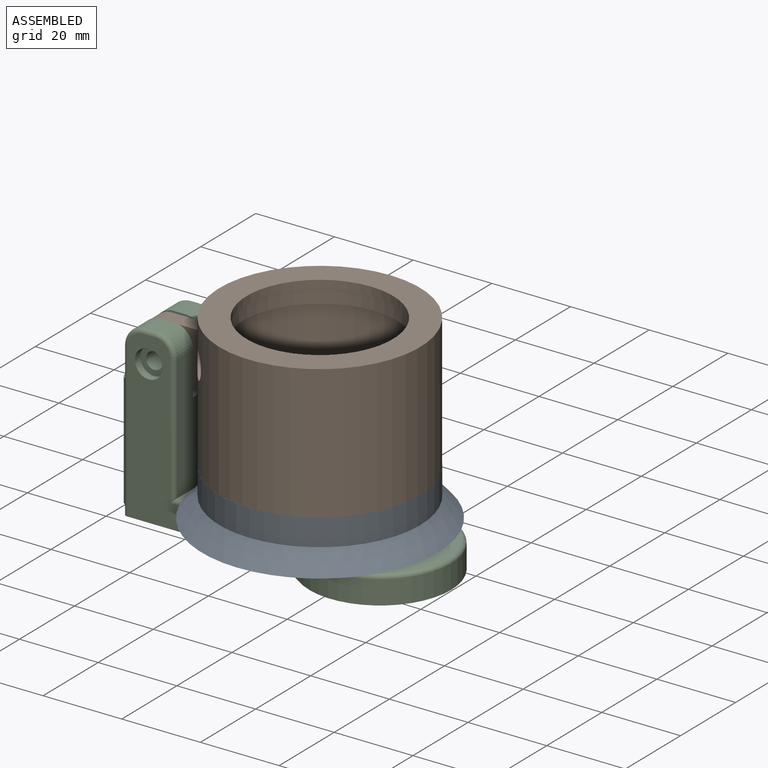
[diagram: assembled view]
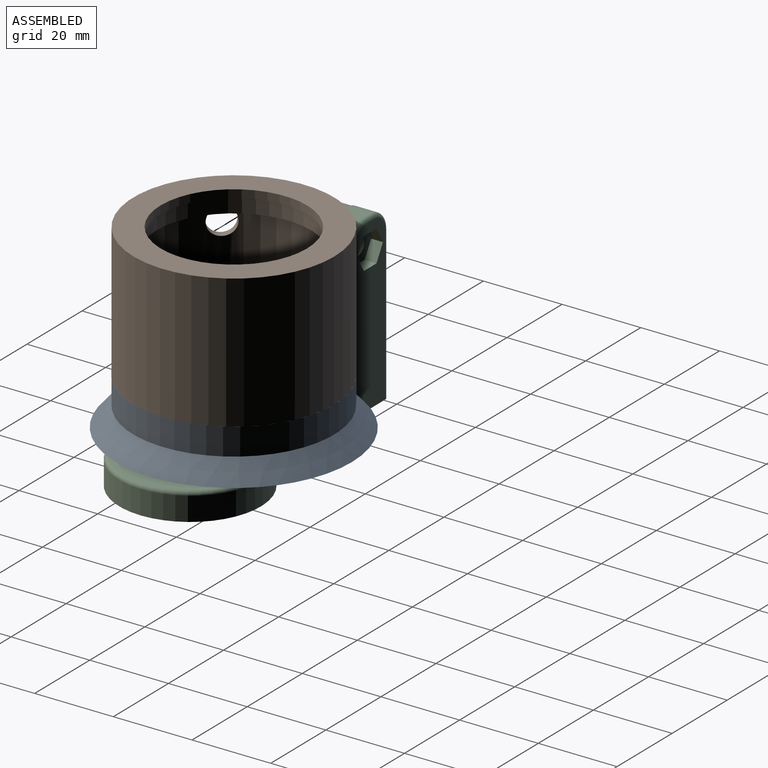
[diagram: assembled view, second angle]
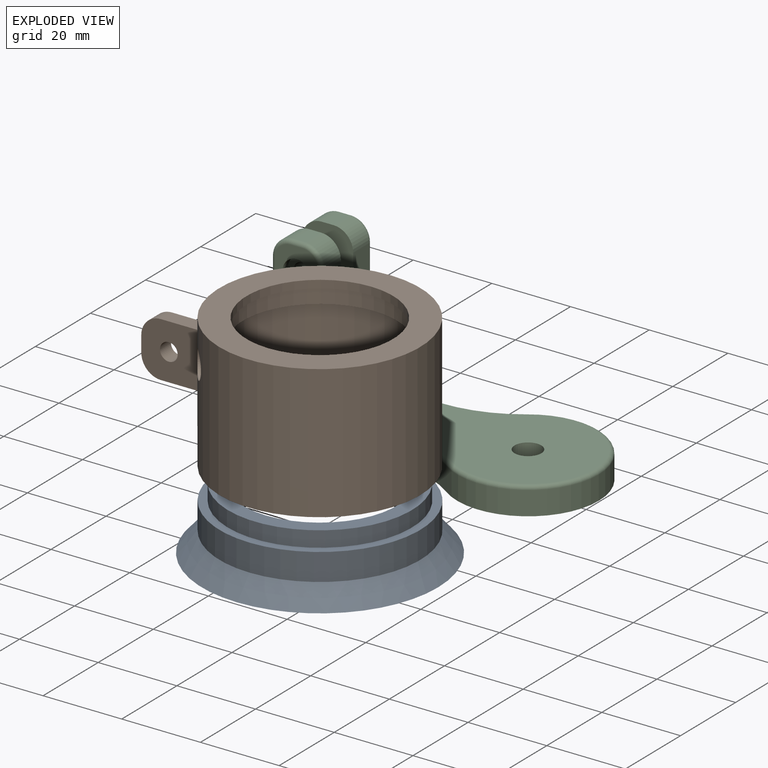
[diagram: exploded view]
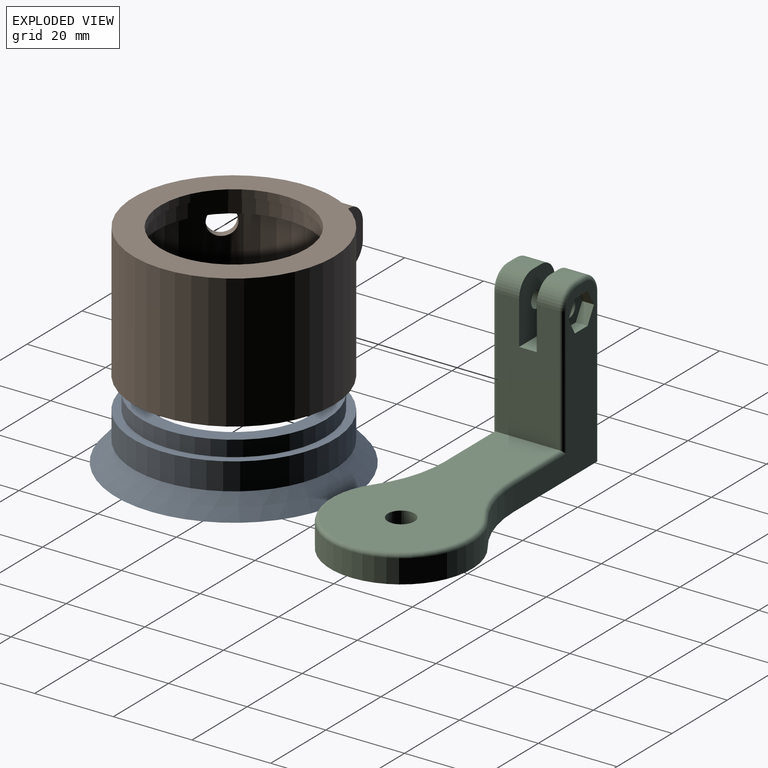
[diagram: exploded view, second angle]
ASSEMBLY  parts=3 mates=2
PART A: 10 faces, bbox 60x60x16 mm
  f0: cone r=19.45mm half-angle=41.3deg, axis (0,0,1), area 1188.3mm2, adj f1,f3
  f1: plane 60x60mm, normal (0,0,1), area 479.7mm2, adj f0,f2
  f2: cone r=17.95mm half-angle=41.3deg, axis (0,0,1), area 1909.6mm2, adj f1,f9
  f3: cylinder r=25.5mm len=51mm, axis (0,0,-1), area 1102.6mm2, adj f0,f4
  f4: plane 51x51mm, normal (0,0,-1), area 322.6mm2, adj f3,f6
  f5: cylinder r=19.6mm len=39.2mm, axis (0,0,1), area 492.6mm2, adj f7,f8
  f6: cylinder r=23.4mm len=46.8mm, axis (0,0,1), area 588.1mm2, adj f4,f7
  f7: plane 46.8x46.8mm, normal (0,0,-1), area 513.3mm2, adj f5,f6
  f8: plane 39.2x39.2mm, normal (0,0,-1), area 120mm2, adj f5,f9
  f9: cylinder r=18.6mm len=37.2mm, axis (0,0,-1), area 241mm2, adj f2,f8
PART B: 19 faces, bbox 51x69.5x34 mm
  f0: cylinder r=25.5mm len=51mm, axis (0,0,-1), area 5284.1mm2, adj f2,f3,f8,f10,f14,f17,f18
  f1: cylinder r=23.5mm len=47mm, axis (0,0,-1), area 4096.8mm2, adj f3,f4,f14
  f2: plane 51x51mm, normal (0,0,-1), area 956mm2, adj f0,f7
  f3: plane 51x51mm, normal (0,0,1), area 307.9mm2, adj f0,f1
  f4: plane 47x47mm, normal (0,0,1), area 528.1mm2, adj f1,f5
  f5: cylinder r=19.6mm len=39.2mm, axis (0,0,1), area 492.6mm2, adj f4,f6
  f6: plane 39.2x39.2mm, normal (0,0,1), area 120mm2, adj f5,f7
  f7: cylinder r=18.6mm len=37.2mm, axis (0,0,1), area 233.7mm2, adj f2,f6
  f8: plane 13.9x8.95mm, normal (0,0,-1), area 56.8mm2, adj f0,f9,f11,f16,f17,f18
  f9: plane 15.94x14mm, normal (1,0,0), area 196.6mm2, adj f8,f10,f12,f13,f15,f16,f18
  f10: plane 13.9x8.95mm, normal (0,0,1), area 56.8mm2, adj f0,f9,f11,f15,f17,f18
  f11: plane 15.94x14mm, normal (-1,0,0), area 196.6mm2, adj f8,f10,f12,f13,f15,f16,f17
  f12: plane 4x4mm, normal (0,-1,0), area 16mm2, adj f9,f11,f15,f16
  f13: cylinder r=2.25mm len=4.5mm, axis (1,0,0), area 56.5mm2, adj f9,f11
  f14: cylinder r=3.45mm len=6.9mm, axis (-0.66,-0.75,0), area 43.6mm2, adj f0,f1
  f15: cylinder r=5mm len=5mm, axis (-1,0,0), area 31.4mm2, adj f9,f10,f11,f12
  f16: cylinder r=5mm len=5mm, axis (1,0,0), area 31.4mm2, adj f8,f9,f11,f12
  f17: cylinder r=3mm len=14mm, axis (0,0,-1), area 58.6mm2, adj f0,f8,f10,f11
  f18: cylinder r=3mm len=14mm, axis (0,0,-1), area 58.6mm2, adj f0,f8,f9,f10
PART C: 53 faces, bbox 82.5x39x44.4 mm
  f0: plane 39x5.75mm, normal (-1,0,0), area 159mm2, adj f10,f14,f19,f32,f37,f52
  f1: cylinder r=2.1mm len=4.2mm, axis (0,-1,0), area 49.5mm2, adj f14,f24
  f2: cylinder r=2.1mm len=4.75mm, axis (0,-1,0), area 62.7mm2, adj f15,f23
  f3: plane 5.75x3mm, normal (0,0,1), area 17.3mm2, adj f15,f17,f18,f40
  f4: plane 32x16mm, normal (1,0,0), area 462.5mm2, adj f5,f14,f15,f16,f18,f20,f42,f48
  f5: plane 63x34mm, normal (0,0,1), area 1379mm2, adj f4,f21,f43,f44,f45,f46,f47
  f6: cylinder r=18mm len=36mm, axis (0,0,-1), area 473.7mm2, adj f10,f11,f12,f45
  f7: plane 43x30.02mm, normal (0,1,0), area 524.8mm2, adj f10,f11,f25,f26,f27,f28,f29,f30
  f8: plane 39x5.75mm, normal (-1,0,0), area 159mm2, adj f10,f15,f17,f31,f37,f38
  f9: plane 43x30.02mm, normal (0,-1,0), area 540.6mm2, adj f10,f12,f22,f38,f39,f40,f41,f42
  f10: plane 81x36mm, normal (0,0,-1), area 1797.6mm2, adj f0,f6,f7,f8,f9,f11,f12,f21
  f11: cylinder r=30mm len=17.49mm, axis (0,0,-1), area 112mm2, adj f6,f7,f10,f46
  f12: cylinder r=30mm len=17.49mm, axis (0,0,-1), area 112mm2, adj f6,f9,f10,f44
  f13: plane 5.75x3mm, normal (0,0,1), area 17.3mm2, adj f14,f19,f20,f50
  f14: plane 16x13mm, normal (0,-1,0), area 183.4mm2, adj f0,f1,f4,f13,f16,f19,f20,f36
  f15: plane 16x13mm, normal (0,1,0), area 183.4mm2, adj f2,f3,f4,f8,f16,f17,f18,f36
  f16: plane 13x4.5mm, normal (0,0,1), area 58.5mm2, adj f4,f14,f15,f36
  f17: cylinder r=5mm len=5.75mm, axis (0,1,0), area 45.2mm2, adj f3,f8,f15,f39
  f18: cylinder r=5mm len=5.75mm, axis (0,-1,0), area 45.2mm2, adj f3,f4,f15,f41
  f19: cylinder r=5mm len=5.75mm, axis (0,1,0), area 45.2mm2, adj f0,f13,f14,f51
  f20: cylinder r=5mm len=5.75mm, axis (0,-1,0), area 45.2mm2, adj f4,f13,f14,f49
  f21: cylinder r=3.4mm len=7mm, axis (0,0,1), area 149.5mm2, adj f5,f10
  f22: cylinder r=3.55mm len=7.1mm, axis (0,-1,0), area 44.6mm2, adj f9,f23
  f23: plane 7.1x7.1mm, normal (0,-1,0), area 25.7mm2, adj f2,f22
  f24: plane 9.24x8mm, normal (0,1,0), area 41.6mm2, adj f1,f25,f26,f27,f28,f29,f30
  f25: plane 4x3mm, normal (0.87,0,0.5), area 13.9mm2, adj f7,f24,f26,f30
  f26: plane 4x3mm, normal (0.87,0,-0.5), area 13.9mm2, adj f7,f24,f25,f27
  f27: plane 4.62x3mm, normal (0,0,-1), area 13.9mm2, adj f7,f24,f26,f28
  f28: plane 4x3mm, normal (-0.87,0,-0.5), area 13.9mm2, adj f7,f24,f27,f29
  f29: plane 4x3mm, normal (-0.87,0,0.5), area 13.9mm2, adj f7,f24,f28,f30
  f30: plane 4.62x3mm, normal (0,0,1), area 13.9mm2, adj f7,f24,f25,f29
  f31: plane 29x2mm, normal (0,-1,0), area 58mm2, adj f8,f10,f35,f37
  f32: plane 29x2mm, normal (0,1,0), area 58mm2, adj f0,f10,f34,f37
  f33: plane 29x5mm, normal (-1,0,0), area 145mm2, adj f10,f34,f35,f37
  f34: cylinder r=2mm len=29mm, axis (0,0,1), area 91.1mm2, adj f10,f32,f33,f37
  f35: cylinder r=2mm len=29mm, axis (0,0,-1), area 91.1mm2, adj f10,f31,f33,f37
  f36: plane 4.5x1mm, normal (1,0,0), area 4.5mm2, adj f14,f15,f16,f37
  f37: plane 9x4mm, normal (0,0,1), area 34.3mm2, adj f0,f8,f31,f32,f33,f34,f35,f36
  f38: cylinder r=1mm len=39mm, axis (0,0,1), area 61.3mm2, adj f8,f9,f10,f39
  f39: torus R=4mm, axis (0,-1,0), area 11.4mm2, adj f9,f17,f38,f40
  f40: cylinder r=1mm len=3mm, axis (-1,0,0), area 4.7mm2, adj f3,f9,f39,f41
  f41: torus R=4mm, axis (0,-1,0), area 11.4mm2, adj f9,f18,f40,f42
  f42: cylinder r=1mm len=33mm, axis (0,0,-1), area 50.8mm2, adj f4,f9,f41,f43
  f43: cylinder r=1mm len=19.02mm, axis (-1,0,0), area 28.9mm2, adj f5,f9,f42,f44
  f44: torus R=31mm, axis (0,0,1), area 29.7mm2, adj f5,f12,f43,f45
  f45: torus R=17mm, axis (0,0,1), area 121.5mm2, adj f5,f6,f44,f46
  f46: torus R=31mm, axis (0,0,1), area 29.7mm2, adj f5,f11,f45,f47
  f47: cylinder r=1mm len=19.02mm, axis (1,0,0), area 28.9mm2, adj f5,f7,f46,f48
  f48: cylinder r=1mm len=33mm, axis (0,0,1), area 50.8mm2, adj f4,f7,f47,f49
  f49: torus R=4mm, axis (0,-1,0), area 11.4mm2, adj f7,f20,f48,f50
  f50: cylinder r=1mm len=3mm, axis (1,0,0), area 4.7mm2, adj f7,f13,f49,f51
  f51: torus R=4mm, axis (0,-1,0), area 11.4mm2, adj f7,f19,f50,f52
  f52: cylinder r=1mm len=39mm, axis (0,0,-1), area 61.3mm2, adj f0,f7,f10,f51
PLACE A rot(axis=(-0.71,0.71,0),180deg) t=(-84.07,-2.25,23.58)mm
PLACE B rot(axis=(0.71,0.71,0),180deg) t=(-84.1,-2.25,57.58)mm
PLACE C t=(-98.08,-2.5,4.05)mm
MATE fastened A.f9 <-> B.f1  axis (0,0,1) through (-84.07,-2.25,23.58)mm
MATE revolute B.f13 <-> C.f1  axis (0,1,0) through (-121.08,-0.25,40.55)mm
